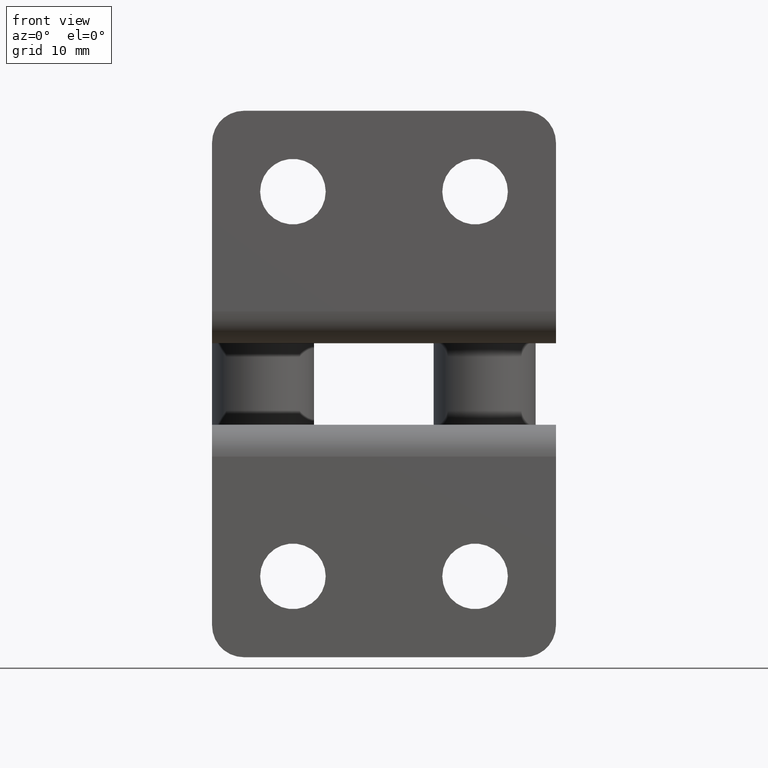
[diagram: clean part render]
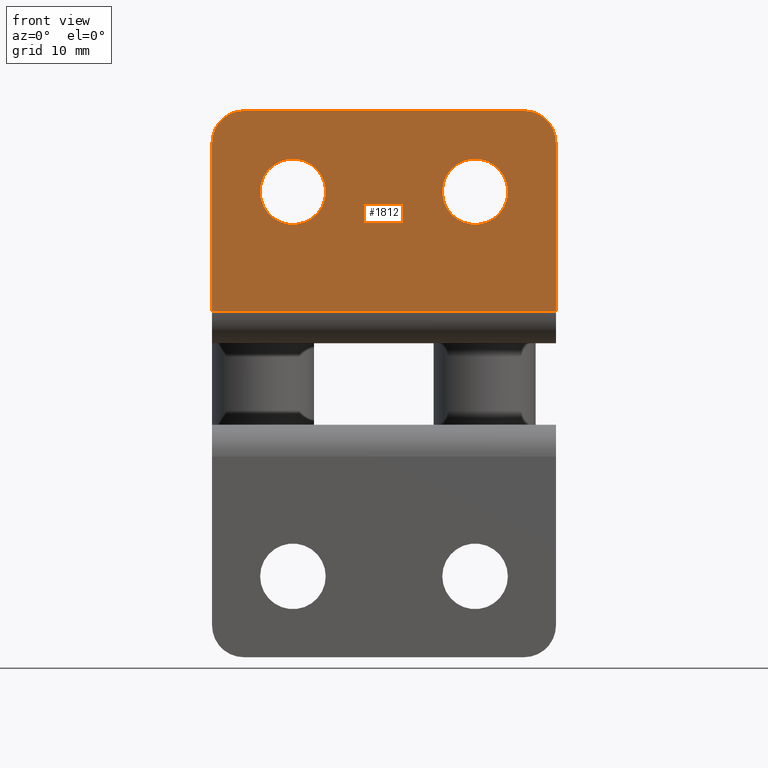
[diagram: same view with one face highlighted and labeled with its STEP entity id]
A machine part, front view. The second image highlights one B-rep face of the part: STEP entity #1812.
In plain terms, the highlighted planar face has unit normal (0, 1, 0).
Its self-contained STEP definition (entity closure, byte-faithful):
#37 = CARTESIAN_POINT ( 'NONE',  ( 4.999999999998876500, -5.551115123125782700E-014, 31.50000000000052200 ) ) ;
#75 = CIRCLE ( 'NONE', #240, 4.999999999999185500 ) ;
#81 = DIRECTION ( 'NONE',  ( 0.0000000000000000000, 1.000000000000000000, 0.0000000000000000000 ) ) ;
#90 = AXIS2_PLACEMENT_3D ( 'NONE', #1817, #1214, #1626 ) ;
#105 = VECTOR ( 'NONE', #1273, 1000.000000000000000 ) ;
#150 = CIRCLE ( 'NONE', #367, 5.150000000000002100 ) ;
#192 = DIRECTION ( 'NONE',  ( 1.000000000000000000, 0.0000000000000000000, 0.0000000000000000000 ) ) ;
#199 = DIRECTION ( 'NONE',  ( 1.000000000000000000, 0.0000000000000000000, 0.0000000000000000000 ) ) ;
#211 = AXIS2_PLACEMENT_3D ( 'NONE', #37, #1807, #199 ) ;
#240 = AXIS2_PLACEMENT_3D ( 'NONE', #825, #1830, #989 ) ;
#282 = LINE ( 'NONE', #1819, #105 ) ;
#298 = FACE_OUTER_BOUND ( 'NONE', #1037, .T. ) ;
#316 = VERTEX_POINT ( 'NONE', #1599 ) ;
#323 = DIRECTION ( 'NONE',  ( 0.0000000000000000000, 1.000000000000000000, 0.0000000000000000000 ) ) ;
#367 = AXIS2_PLACEMENT_3D ( 'NONE', #994, #81, #1151 ) ;
#368 = CARTESIAN_POINT ( 'NONE',  ( 0.0000000000000000000, -5.616167253474913000E-014, 36.50000000000002800 ) ) ;
#372 = VERTEX_POINT ( 'NONE', #640 ) ;
#375 = ORIENTED_EDGE ( 'NONE', *, *, #422, .T. ) ;
#377 = AXIS2_PLACEMENT_3D ( 'NONE', #1778, #626, #1662 ) ;
#386 = CIRCLE ( 'NONE', #211, 4.999999999999109200 ) ;
#421 = ORIENTED_EDGE ( 'NONE', *, *, #431, .T. ) ;
#422 = EDGE_CURVE ( 'NONE', #1686, #316, #1169, .T. ) ;
#425 = CARTESIAN_POINT ( 'NONE',  ( 54.00000000000000000, -5.616167253474913000E-014, 36.50000000000002800 ) ) ;
#431 = EDGE_CURVE ( 'NONE', #1500, #1669, #1055, .T. ) ;
#446 = EDGE_CURVE ( 'NONE', #1059, #372, #1263, .T. ) ;
#468 = PLANE ( 'NONE',  #377 ) ;
#492 = AXIS2_PLACEMENT_3D ( 'NONE', #885, #1678, #1666 ) ;
#510 = AXIS2_PLACEMENT_3D ( 'NONE', #1458, #323, #192 ) ;
#529 = CARTESIAN_POINT ( 'NONE',  ( 53.99999999999934600, -5.551115123125782700E-014, 31.50000000000016700 ) ) ;
#592 = LINE ( 'NONE', #368, #730 ) ;
#611 = EDGE_LOOP ( 'NONE', ( #375, #1484 ) ) ;
#626 = DIRECTION ( 'NONE',  ( -0.0000000000000000000, 1.000000000000000000, 0.0000000000000000000 ) ) ;
#640 = CARTESIAN_POINT ( 'NONE',  ( 4.999999999999112700, -5.551115123125782700E-014, 36.49999999999963100 ) ) ;
#730 = VECTOR ( 'NONE', #898, 1000.000000000000000 ) ;
#770 = FACE_BOUND ( 'NONE', #611, .T. ) ;
#791 = VERTEX_POINT ( 'NONE', #1136 ) ;
#825 = CARTESIAN_POINT ( 'NONE',  ( 49.00000000000037700, -5.551115123125782700E-014, 31.50000000000022400 ) ) ;
#859 = VERTEX_POINT ( 'NONE', #529 ) ;
#885 = CARTESIAN_POINT ( 'NONE',  ( 12.70000000000034900, -5.551115123125782700E-014, 23.80000000000013900 ) ) ;
#896 = CARTESIAN_POINT ( 'NONE',  ( 7.550000000000347100, -5.551115123125782700E-014, 23.80000000000013900 ) ) ;
#898 = DIRECTION ( 'NONE',  ( 0.0000000000000000000, 0.0000000000000000000, -1.000000000000000000 ) ) ;
#976 = EDGE_CURVE ( 'NONE', #1519, #1231, #592, .T. ) ;
#983 = VECTOR ( 'NONE', #1456, 1000.000000000000000 ) ;
#989 = DIRECTION ( 'NONE',  ( 1.000000000000000000, 0.0000000000000000000, 0.0000000000000000000 ) ) ;
#994 = CARTESIAN_POINT ( 'NONE',  ( 12.70000000000034900, -5.551115123125782700E-014, 23.80000000000013900 ) ) ;
#998 = ORIENTED_EDGE ( 'NONE', *, *, #446, .T. ) ;
#1011 = EDGE_CURVE ( 'NONE', #316, #1686, #1571, .T. ) ;
#1037 = EDGE_LOOP ( 'NONE', ( #1717, #998, #1644, #1203, #1744, #1554 ) ) ;
#1055 = CIRCLE ( 'NONE', #492, 5.150000000000002100 ) ;
#1059 = VERTEX_POINT ( 'NONE', #1682 ) ;
#1122 = FACE_BOUND ( 'NONE', #1249, .T. ) ;
#1136 = CARTESIAN_POINT ( 'NONE',  ( 54.00000000000000000, -5.616167253474913000E-014, 5.000000000000004400 ) ) ;
#1151 = DIRECTION ( 'NONE',  ( 1.000000000000000000, 0.0000000000000000000, 0.0000000000000000000 ) ) ;
#1169 = CIRCLE ( 'NONE', #510, 5.150000000000002100 ) ;
#1200 = CARTESIAN_POINT ( 'NONE',  ( 0.0000000000000000000, -5.551115123125782700E-014, 31.50000000000052200 ) ) ;
#1203 = ORIENTED_EDGE ( 'NONE', *, *, #976, .T. ) ;
#1214 = DIRECTION ( 'NONE',  ( 0.0000000000000000000, 1.000000000000000000, 0.0000000000000000000 ) ) ;
#1231 = VERTEX_POINT ( 'NONE', #1568 ) ;
#1249 = EDGE_LOOP ( 'NONE', ( #421, #1314 ) ) ;
#1258 = EDGE_CURVE ( 'NONE', #1519, #372, #386, .T. ) ;
#1263 = LINE ( 'NONE', #425, #1702 ) ;
#1273 = DIRECTION ( 'NONE',  ( -1.000000000000000000, -0.0000000000000000000, 0.0000000000000000000 ) ) ;
#1305 = EDGE_CURVE ( 'NONE', #791, #1231, #282, .T. ) ;
#1314 = ORIENTED_EDGE ( 'NONE', *, *, #1345, .T. ) ;
#1328 = EDGE_CURVE ( 'NONE', #1059, #859, #75, .T. ) ;
#1345 = EDGE_CURVE ( 'NONE', #1669, #1500, #150, .T. ) ;
#1346 = CARTESIAN_POINT ( 'NONE',  ( 17.85000000000035300, -5.551115123125782700E-014, 23.80000000000013900 ) ) ;
#1369 = DIRECTION ( 'NONE',  ( -1.000000000000000000, -0.0000000000000000000, 0.0000000000000000000 ) ) ;
#1389 = EDGE_CURVE ( 'NONE', #859, #791, #1749, .T. ) ;
#1456 = DIRECTION ( 'NONE',  ( 0.0000000000000000000, 0.0000000000000000000, -1.000000000000000000 ) ) ;
#1458 = CARTESIAN_POINT ( 'NONE',  ( 41.30000000000036700, -5.551115123125782700E-014, 23.80000000000025300 ) ) ;
#1484 = ORIENTED_EDGE ( 'NONE', *, *, #1011, .T. ) ;
#1500 = VERTEX_POINT ( 'NONE', #1346 ) ;
#1519 = VERTEX_POINT ( 'NONE', #1200 ) ;
#1554 = ORIENTED_EDGE ( 'NONE', *, *, #1389, .F. ) ;
#1568 = CARTESIAN_POINT ( 'NONE',  ( 0.0000000000000000000, -5.616167253474913000E-014, 5.000000000000004400 ) ) ;
#1571 = CIRCLE ( 'NONE', #90, 5.150000000000002100 ) ;
#1598 = CARTESIAN_POINT ( 'NONE',  ( 54.00000000000000000, -5.616167253474913000E-014, 36.50000000000002800 ) ) ;
#1599 = CARTESIAN_POINT ( 'NONE',  ( 36.15000000000036100, -5.551115123125782700E-014, 23.80000000000025300 ) ) ;
#1626 = DIRECTION ( 'NONE',  ( 1.000000000000000000, 0.0000000000000000000, 0.0000000000000000000 ) ) ;
#1644 = ORIENTED_EDGE ( 'NONE', *, *, #1258, .F. ) ;
#1662 = DIRECTION ( 'NONE',  ( 1.000000000000000000, 0.0000000000000000000, 0.0000000000000000000 ) ) ;
#1666 = DIRECTION ( 'NONE',  ( 1.000000000000000000, 0.0000000000000000000, 0.0000000000000000000 ) ) ;
#1669 = VERTEX_POINT ( 'NONE', #896 ) ;
#1678 = DIRECTION ( 'NONE',  ( 0.0000000000000000000, 1.000000000000000000, 0.0000000000000000000 ) ) ;
#1682 = CARTESIAN_POINT ( 'NONE',  ( 49.00000000000037700, -5.616167253474913000E-014, 36.50000000000002800 ) ) ;
#1686 = VERTEX_POINT ( 'NONE', #1879 ) ;
#1702 = VECTOR ( 'NONE', #1369, 1000.000000000000000 ) ;
#1717 = ORIENTED_EDGE ( 'NONE', *, *, #1328, .F. ) ;
#1744 = ORIENTED_EDGE ( 'NONE', *, *, #1305, .F. ) ;
#1749 = LINE ( 'NONE', #1598, #983 ) ;
#1778 = CARTESIAN_POINT ( 'NONE',  ( 54.00000000000000000, -5.616167253474913000E-014, 36.50000000000002800 ) ) ;
#1807 = DIRECTION ( 'NONE',  ( 0.0000000000000000000, 1.000000000000000000, 0.0000000000000000000 ) ) ;
#1812 = ADVANCED_FACE ( 'NONE', ( #770, #1122, #298 ), #468, .F. ) ;
#1817 = CARTESIAN_POINT ( 'NONE',  ( 41.30000000000036700, -5.551115123125782700E-014, 23.80000000000025300 ) ) ;
#1819 = CARTESIAN_POINT ( 'NONE',  ( 54.00000000000000000, -5.616167253474913000E-014, 5.000000000000004400 ) ) ;
#1830 = DIRECTION ( 'NONE',  ( 0.0000000000000000000, 1.000000000000000000, 0.0000000000000000000 ) ) ;
#1879 = CARTESIAN_POINT ( 'NONE',  ( 46.45000000000036500, -5.551115123125782700E-014, 23.80000000000025300 ) ) ;